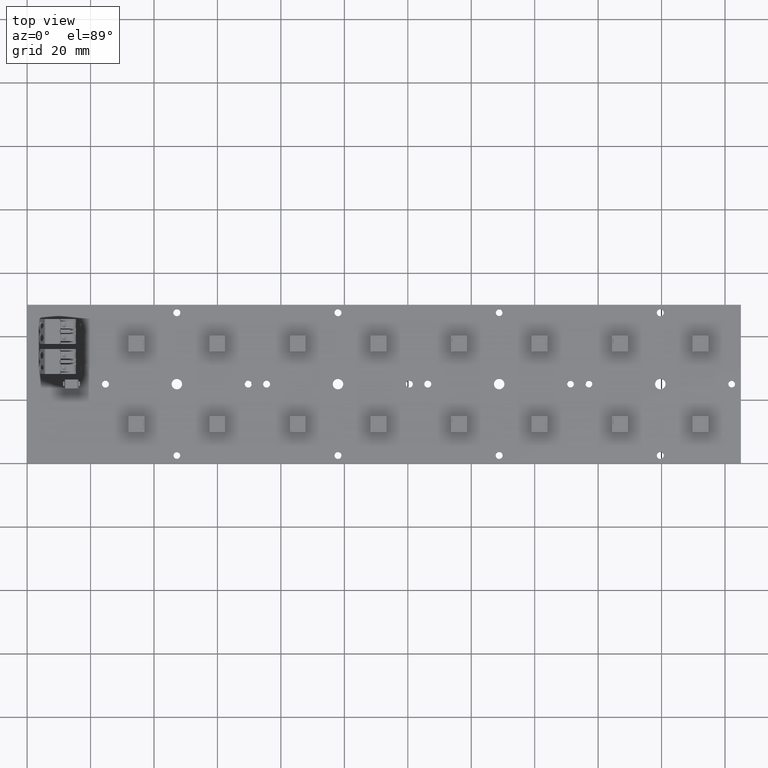
[diagram: clean part render]
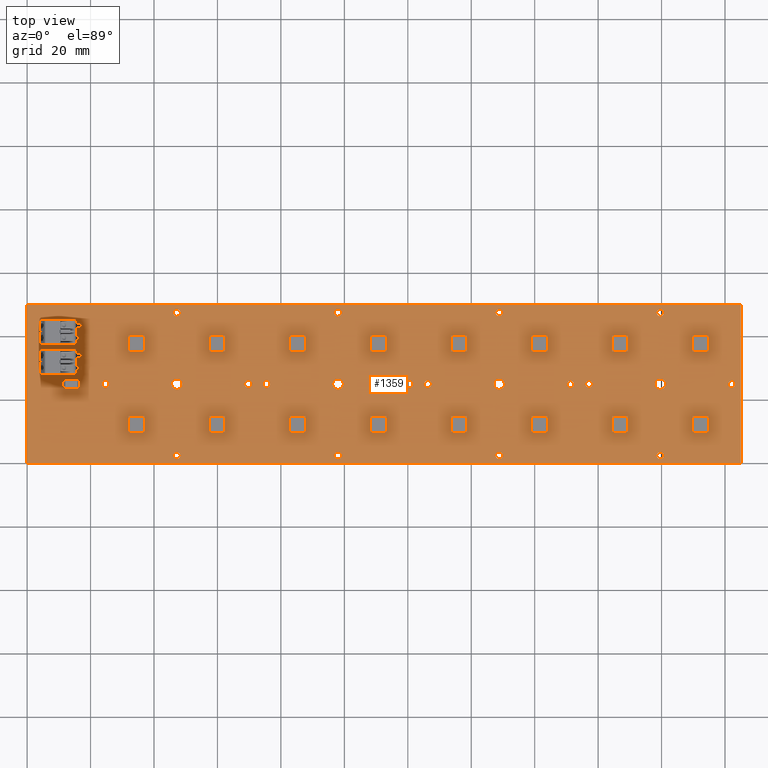
[diagram: same view with one face highlighted and labeled with its STEP entity id]
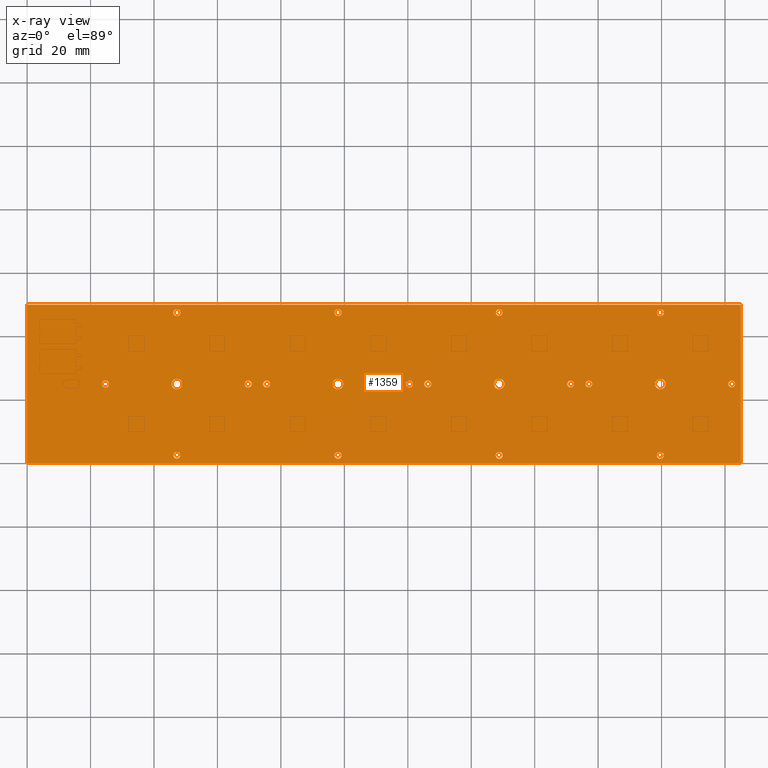
[diagram: x-ray of the same camera — body ghosted, the highlighted face saturated]
A machine part, top view. The second image highlights one B-rep face of the part: STEP entity #1359.
The next image is the same camera in x-ray: the body ghosted, the highlighted face saturated — about 0% of this face is hidden behind the body in this view.
In plain terms, the highlighted planar face has unit normal (0, 0, 1).
Its self-contained STEP definition (entity closure, byte-faithful):
#1117=FACE_BOUND('',#2080,.T.);
#1118=FACE_BOUND('',#2081,.T.);
#1119=FACE_BOUND('',#2082,.T.);
#1120=FACE_BOUND('',#2083,.T.);
#1121=FACE_BOUND('',#2084,.T.);
#1122=FACE_BOUND('',#2085,.T.);
#1123=FACE_BOUND('',#2086,.T.);
#1124=FACE_BOUND('',#2087,.T.);
#1125=FACE_BOUND('',#2088,.T.);
#1126=FACE_BOUND('',#2089,.T.);
#1127=FACE_BOUND('',#2090,.T.);
#1128=FACE_BOUND('',#2091,.T.);
#1129=FACE_BOUND('',#2092,.T.);
#1130=FACE_BOUND('',#2093,.T.);
#1131=FACE_BOUND('',#2094,.T.);
#1132=FACE_BOUND('',#2095,.T.);
#1133=FACE_BOUND('',#2096,.T.);
#1134=FACE_BOUND('',#2097,.T.);
#1135=FACE_BOUND('',#2098,.T.);
#1136=FACE_BOUND('',#2099,.T.);
#1137=FACE_BOUND('',#2100,.T.);
#1150=CIRCLE('',#6050,1.65);
#1152=CIRCLE('',#6053,1.1);
#1154=CIRCLE('',#6056,1.05);
#1156=CIRCLE('',#6059,1.1);
#1158=CIRCLE('',#6062,1.1);
#1160=CIRCLE('',#6065,1.65);
#1162=CIRCLE('',#6068,1.1);
#1164=CIRCLE('',#6071,1.1);
#1166=CIRCLE('',#6074,1.1);
#1168=CIRCLE('',#6077,1.1);
#1170=CIRCLE('',#6080,1.65);
#1172=CIRCLE('',#6083,1.1);
#1174=CIRCLE('',#6086,1.05);
#1176=CIRCLE('',#6089,1.05);
#1178=CIRCLE('',#6092,1.05);
#1180=CIRCLE('',#6095,1.65);
#1182=CIRCLE('',#6098,1.1);
#1184=CIRCLE('',#6101,1.1);
#1186=CIRCLE('',#6104,1.05);
#1188=CIRCLE('',#6108,1.1);
#1359=ADVANCED_FACE('',(#1117,#1118,#1119,#1120,#1121,#1122,#1123,#1124,
#1125,#1126,#1127,#1128,#1129,#1130,#1131,#1132,#1133,#1134,#1135,#1136,
#1137),#1610,.T.);
#1610=PLANE('',#6111);
#2080=EDGE_LOOP('',(#2432,#2433,#2434,#2435));
#2081=EDGE_LOOP('',(#2436));
#2082=EDGE_LOOP('',(#2437));
#2083=EDGE_LOOP('',(#2438));
#2084=EDGE_LOOP('',(#2439));
#2085=EDGE_LOOP('',(#2440));
#2086=EDGE_LOOP('',(#2441));
#2087=EDGE_LOOP('',(#2442));
#2088=EDGE_LOOP('',(#2443));
#2089=EDGE_LOOP('',(#2444));
#2090=EDGE_LOOP('',(#2445));
#2091=EDGE_LOOP('',(#2446));
#2092=EDGE_LOOP('',(#2447));
#2093=EDGE_LOOP('',(#2448));
#2094=EDGE_LOOP('',(#2449));
#2095=EDGE_LOOP('',(#2450));
#2096=EDGE_LOOP('',(#2451));
#2097=EDGE_LOOP('',(#2452));
#2098=EDGE_LOOP('',(#2453));
#2099=EDGE_LOOP('',(#2454));
#2100=EDGE_LOOP('',(#2455));
#2432=ORIENTED_EDGE('',*,*,#4306,.F.);
#2433=ORIENTED_EDGE('',*,*,#4354,.F.);
#2434=ORIENTED_EDGE('',*,*,#4313,.F.);
#2435=ORIENTED_EDGE('',*,*,#4310,.F.);
#2436=ORIENTED_EDGE('',*,*,#4353,.F.);
#2437=ORIENTED_EDGE('',*,*,#4351,.F.);
#2438=ORIENTED_EDGE('',*,*,#4349,.F.);
#2439=ORIENTED_EDGE('',*,*,#4347,.F.);
#2440=ORIENTED_EDGE('',*,*,#4345,.F.);
#2441=ORIENTED_EDGE('',*,*,#4343,.F.);
#2442=ORIENTED_EDGE('',*,*,#4341,.F.);
#2443=ORIENTED_EDGE('',*,*,#4339,.F.);
#2444=ORIENTED_EDGE('',*,*,#4337,.F.);
#2445=ORIENTED_EDGE('',*,*,#4335,.F.);
#2446=ORIENTED_EDGE('',*,*,#4333,.F.);
#2447=ORIENTED_EDGE('',*,*,#4331,.F.);
#2448=ORIENTED_EDGE('',*,*,#4329,.F.);
#2449=ORIENTED_EDGE('',*,*,#4327,.F.);
#2450=ORIENTED_EDGE('',*,*,#4325,.F.);
#2451=ORIENTED_EDGE('',*,*,#4323,.F.);
#2452=ORIENTED_EDGE('',*,*,#4321,.F.);
#2453=ORIENTED_EDGE('',*,*,#4319,.F.);
#2454=ORIENTED_EDGE('',*,*,#4317,.F.);
#2455=ORIENTED_EDGE('',*,*,#4357,.F.);
#3810=VERTEX_POINT('',#8013);
#3811=VERTEX_POINT('',#8014);
#3814=VERTEX_POINT('',#8022);
#3816=VERTEX_POINT('',#8028);
#3819=VERTEX_POINT('',#8036);
#3821=VERTEX_POINT('',#8041);
#3823=VERTEX_POINT('',#8046);
#3825=VERTEX_POINT('',#8051);
#3827=VERTEX_POINT('',#8056);
#3829=VERTEX_POINT('',#8061);
#3831=VERTEX_POINT('',#8066);
#3833=VERTEX_POINT('',#8071);
#3835=VERTEX_POINT('',#8076);
#3837=VERTEX_POINT('',#8081);
#3839=VERTEX_POINT('',#8086);
#3841=VERTEX_POINT('',#8091);
#3843=VERTEX_POINT('',#8096);
#3845=VERTEX_POINT('',#8101);
#3847=VERTEX_POINT('',#8106);
#3849=VERTEX_POINT('',#8111);
#3851=VERTEX_POINT('',#8116);
#3853=VERTEX_POINT('',#8121);
#3855=VERTEX_POINT('',#8126);
#3857=VERTEX_POINT('',#8134);
#4306=EDGE_CURVE('',#3810,#3811,#5035,.T.);
#4310=EDGE_CURVE('',#3811,#3814,#5039,.T.);
#4313=EDGE_CURVE('',#3814,#3816,#5042,.T.);
#4317=EDGE_CURVE('',#3819,#3819,#1150,.T.);
#4319=EDGE_CURVE('',#3821,#3821,#1152,.T.);
#4321=EDGE_CURVE('',#3823,#3823,#1154,.T.);
#4323=EDGE_CURVE('',#3825,#3825,#1156,.T.);
#4325=EDGE_CURVE('',#3827,#3827,#1158,.T.);
#4327=EDGE_CURVE('',#3829,#3829,#1160,.T.);
#4329=EDGE_CURVE('',#3831,#3831,#1162,.T.);
#4331=EDGE_CURVE('',#3833,#3833,#1164,.T.);
#4333=EDGE_CURVE('',#3835,#3835,#1166,.T.);
#4335=EDGE_CURVE('',#3837,#3837,#1168,.T.);
#4337=EDGE_CURVE('',#3839,#3839,#1170,.T.);
#4339=EDGE_CURVE('',#3841,#3841,#1172,.T.);
#4341=EDGE_CURVE('',#3843,#3843,#1174,.T.);
#4343=EDGE_CURVE('',#3845,#3845,#1176,.T.);
#4345=EDGE_CURVE('',#3847,#3847,#1178,.T.);
#4347=EDGE_CURVE('',#3849,#3849,#1180,.T.);
#4349=EDGE_CURVE('',#3851,#3851,#1182,.T.);
#4351=EDGE_CURVE('',#3853,#3853,#1184,.T.);
#4353=EDGE_CURVE('',#3855,#3855,#1186,.T.);
#4354=EDGE_CURVE('',#3816,#3810,#5045,.T.);
#4357=EDGE_CURVE('',#3857,#3857,#1188,.T.);
#5035=LINE('',#8012,#5540);
#5039=LINE('',#8021,#5544);
#5042=LINE('',#8027,#5547);
#5045=LINE('',#8128,#5550);
#5540=VECTOR('',#6534,1.);
#5544=VECTOR('',#6540,1.);
#5547=VECTOR('',#6545,1.);
#5550=VECTOR('',#6664,1.);
#6050=AXIS2_PLACEMENT_3D('',#8035,#6552,#6553);
#6053=AXIS2_PLACEMENT_3D('',#8040,#6558,#6559);
#6056=AXIS2_PLACEMENT_3D('',#8045,#6564,#6565);
#6059=AXIS2_PLACEMENT_3D('',#8050,#6570,#6571);
#6062=AXIS2_PLACEMENT_3D('',#8055,#6576,#6577);
#6065=AXIS2_PLACEMENT_3D('',#8060,#6582,#6583);
#6068=AXIS2_PLACEMENT_3D('',#8065,#6588,#6589);
#6071=AXIS2_PLACEMENT_3D('',#8070,#6594,#6595);
#6074=AXIS2_PLACEMENT_3D('',#8075,#6600,#6601);
#6077=AXIS2_PLACEMENT_3D('',#8080,#6606,#6607);
#6080=AXIS2_PLACEMENT_3D('',#8085,#6612,#6613);
#6083=AXIS2_PLACEMENT_3D('',#8090,#6618,#6619);
#6086=AXIS2_PLACEMENT_3D('',#8095,#6624,#6625);
#6089=AXIS2_PLACEMENT_3D('',#8100,#6630,#6631);
#6092=AXIS2_PLACEMENT_3D('',#8105,#6636,#6637);
#6095=AXIS2_PLACEMENT_3D('',#8110,#6642,#6643);
#6098=AXIS2_PLACEMENT_3D('',#8115,#6648,#6649);
#6101=AXIS2_PLACEMENT_3D('',#8120,#6654,#6655);
#6104=AXIS2_PLACEMENT_3D('',#8125,#6660,#6661);
#6108=AXIS2_PLACEMENT_3D('',#8133,#6670,#6671);
#6111=AXIS2_PLACEMENT_3D('',#8137,#6676,#6677);
#6534=DIRECTION('',(1.,0.,0.));
#6540=DIRECTION('',(0.,-1.,0.));
#6545=DIRECTION('',(-1.,0.,0.));
#6552=DIRECTION('',(0.,0.,1.));
#6553=DIRECTION('',(0.999999999999999,0.,0.));
#6558=DIRECTION('',(0.,0.,1.));
#6559=DIRECTION('',(0.999999999999997,0.,0.));
#6564=DIRECTION('',(0.,0.,1.));
#6565=DIRECTION('',(1.,0.,0.));
#6570=DIRECTION('',(0.,0.,1.));
#6571=DIRECTION('',(1.,0.,0.));
#6576=DIRECTION('',(0.,0.,1.));
#6577=DIRECTION('',(1.,0.,0.));
#6582=DIRECTION('',(0.,0.,1.));
#6583=DIRECTION('',(0.999999999999999,0.,0.));
#6588=DIRECTION('',(0.,0.,1.));
#6589=DIRECTION('',(1.,0.,0.));
#6594=DIRECTION('',(0.,0.,1.));
#6595=DIRECTION('',(1.,0.,0.));
#6600=DIRECTION('',(0.,0.,1.));
#6601=DIRECTION('',(1.,0.,0.));
#6606=DIRECTION('',(0.,0.,1.));
#6607=DIRECTION('',(0.999999999999991,0.,0.));
#6612=DIRECTION('',(0.,0.,1.));
#6613=DIRECTION('',(1.00000000000001,0.,0.));
#6618=DIRECTION('',(0.,0.,1.));
#6619=DIRECTION('',(0.999999999999991,0.,0.));
#6624=DIRECTION('',(0.,0.,1.));
#6625=DIRECTION('',(0.999999999999995,0.,0.));
#6630=DIRECTION('',(0.,0.,1.));
#6631=DIRECTION('',(0.999999999999995,0.,0.));
#6636=DIRECTION('',(0.,0.,1.));
#6637=DIRECTION('',(0.999999999999995,0.,0.));
#6642=DIRECTION('',(0.,0.,1.));
#6643=DIRECTION('',(1.00000000000001,0.,0.));
#6648=DIRECTION('',(0.,0.,1.));
#6649=DIRECTION('',(0.999999999999991,0.,0.));
#6654=DIRECTION('',(0.,0.,1.));
#6655=DIRECTION('',(0.999999999999991,0.,0.));
#6660=DIRECTION('',(0.,0.,1.));
#6661=DIRECTION('',(0.999999999999995,0.,0.));
#6664=DIRECTION('',(0.,1.,0.));
#6670=DIRECTION('',(0.,0.,1.));
#6671=DIRECTION('',(1.,0.,0.));
#6676=DIRECTION('',(0.,0.,1.));
#6677=DIRECTION('',(1.,0.,0.));
#8012=CARTESIAN_POINT('',(0.,50.,0.));
#8013=CARTESIAN_POINT('',(0.,50.,0.));
#8014=CARTESIAN_POINT('',(225.,50.,0.));
#8021=CARTESIAN_POINT('',(225.,50.,0.));
#8022=CARTESIAN_POINT('',(225.,0.,0.));
#8027=CARTESIAN_POINT('',(225.,0.,0.));
#8028=CARTESIAN_POINT('',(0.,0.,0.));
#8035=CARTESIAN_POINT('',(47.2,25.,0.));
#8036=CARTESIAN_POINT('',(48.85,25.,0.));
#8040=CARTESIAN_POINT('',(47.2,47.5,0.));
#8041=CARTESIAN_POINT('',(48.3,47.5,0.));
#8045=CARTESIAN_POINT('',(47.2,2.5,0.));
#8046=CARTESIAN_POINT('',(48.25,2.5,0.));
#8050=CARTESIAN_POINT('',(69.7,25.,0.));
#8051=CARTESIAN_POINT('',(70.8,25.,0.));
#8055=CARTESIAN_POINT('',(75.5,25.,0.));
#8056=CARTESIAN_POINT('',(76.6,25.,0.));
#8060=CARTESIAN_POINT('',(98.,25.,0.));
#8061=CARTESIAN_POINT('',(99.65,25.,0.));
#8065=CARTESIAN_POINT('',(98.,2.5,0.));
#8066=CARTESIAN_POINT('',(99.1,2.5,0.));
#8070=CARTESIAN_POINT('',(98.,47.5,0.));
#8071=CARTESIAN_POINT('',(99.1,47.5,0.));
#8075=CARTESIAN_POINT('',(120.5,25.,0.));
#8076=CARTESIAN_POINT('',(121.6,25.,0.));
#8080=CARTESIAN_POINT('',(126.3,25.,0.));
#8081=CARTESIAN_POINT('',(127.4,25.,0.));
#8085=CARTESIAN_POINT('',(148.8,25.,0.));
#8086=CARTESIAN_POINT('',(150.45,25.,0.));
#8090=CARTESIAN_POINT('',(148.8,2.5,0.));
#8091=CARTESIAN_POINT('',(149.9,2.5,0.));
#8095=CARTESIAN_POINT('',(148.8,47.5,0.));
#8096=CARTESIAN_POINT('',(149.85,47.5,0.));
#8100=CARTESIAN_POINT('',(171.3,25.,0.));
#8101=CARTESIAN_POINT('',(172.35,25.,0.));
#8105=CARTESIAN_POINT('',(177.1,25.,0.));
#8106=CARTESIAN_POINT('',(178.15,25.,0.));
#8110=CARTESIAN_POINT('',(199.6,25.,0.));
#8111=CARTESIAN_POINT('',(201.25,25.,0.));
#8115=CARTESIAN_POINT('',(199.6,2.5,0.));
#8116=CARTESIAN_POINT('',(200.7,2.5,0.));
#8120=CARTESIAN_POINT('',(199.6,47.5,0.));
#8121=CARTESIAN_POINT('',(200.7,47.5,0.));
#8125=CARTESIAN_POINT('',(222.1,25.,0.));
#8126=CARTESIAN_POINT('',(223.15,25.,0.));
#8128=CARTESIAN_POINT('',(0.,0.,0.));
#8133=CARTESIAN_POINT('',(24.7,25.,0.));
#8134=CARTESIAN_POINT('',(25.8,25.,0.));
#8137=CARTESIAN_POINT('',(222.1,25.,0.));